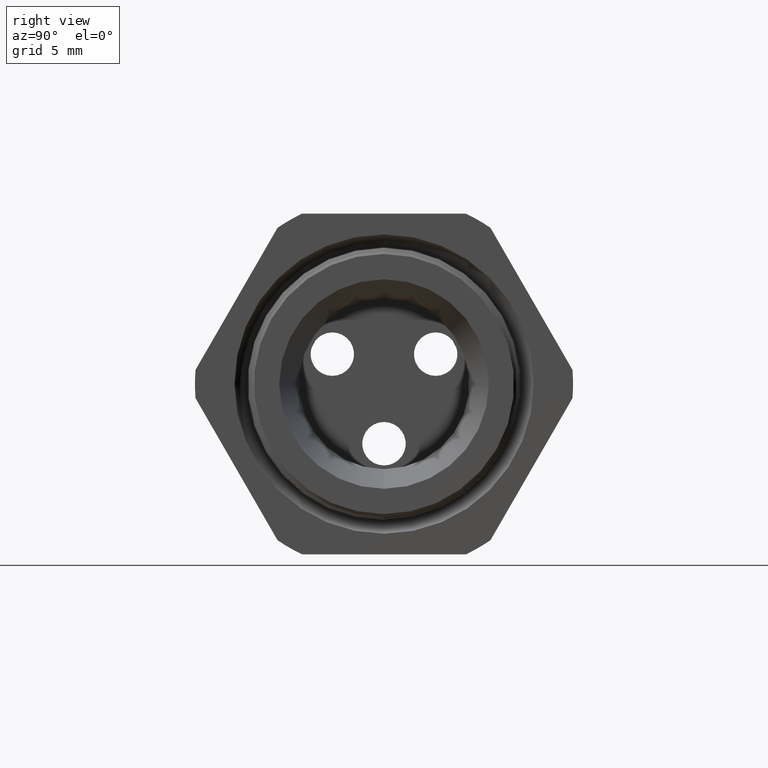
[diagram: clean part render]
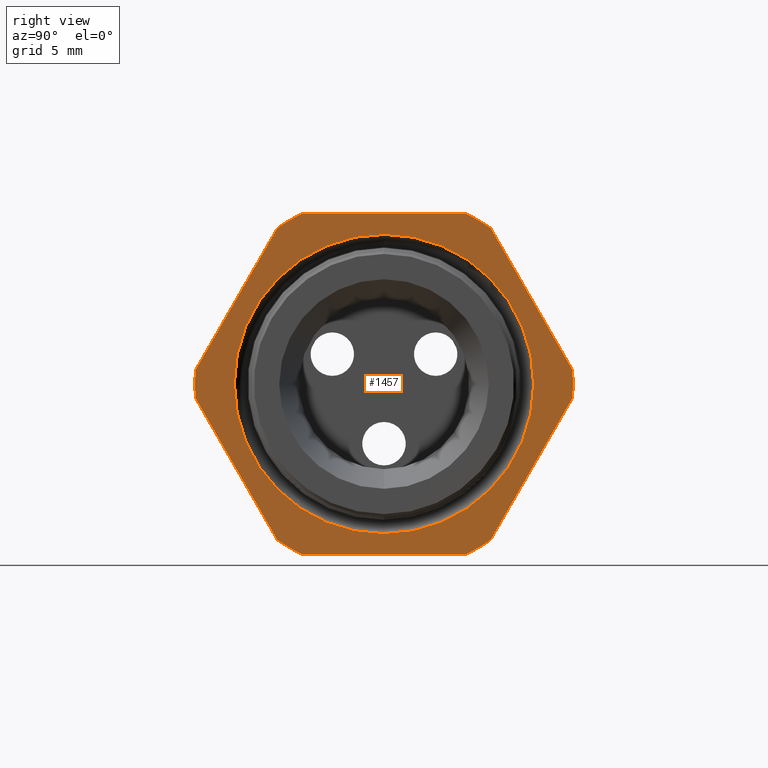
[diagram: same view with one face highlighted and labeled with its STEP entity id]
A machine part, right view. The second image highlights one B-rep face of the part: STEP entity #1457.
In plain terms, the highlighted planar face has unit normal (1, 0, 0).
Its self-contained STEP definition (entity closure, byte-faithful):
#230 = VERTEX_POINT ( 'NONE', #2210 ) ;
#232 = EDGE_CURVE ( 'NONE', #230, #233, #2271, .T. ) ;
#233 = VERTEX_POINT ( 'NONE', #2266 ) ;
#1429 = EDGE_CURVE ( 'NONE', #1511, #1430, #4439, .T. ) ;
#1430 = VERTEX_POINT ( 'NONE', #4435 ) ;
#1431 = ORIENTED_EDGE ( 'NONE', *, *, #1487, .T. ) ;
#1432 = EDGE_CURVE ( 'NONE', #233, #230, #4433, .T. ) ;
#1433 = ORIENTED_EDGE ( 'NONE', *, *, #232, .F. ) ;
#1434 = EDGE_LOOP ( 'NONE', ( #1435, #1439, #1442, #1445, #1503, #1506, #1509, #1512, #1431, #1489, #1492, #1495 ) ) ;
#1435 = ORIENTED_EDGE ( 'NONE', *, *, #1436, .T. ) ;
#1436 = EDGE_CURVE ( 'NONE', #1437, #1438, #4434, .T. ) ;
#1437 = VERTEX_POINT ( 'NONE', #4425 ) ;
#1438 = VERTEX_POINT ( 'NONE', #4424 ) ;
#1439 = ORIENTED_EDGE ( 'NONE', *, *, #1440, .T. ) ;
#1440 = EDGE_CURVE ( 'NONE', #1438, #1441, #4423, .T. ) ;
#1441 = VERTEX_POINT ( 'NONE', #4418 ) ;
#1442 = ORIENTED_EDGE ( 'NONE', *, *, #1443, .T. ) ;
#1443 = EDGE_CURVE ( 'NONE', #1441, #1444, #4417, .T. ) ;
#1444 = VERTEX_POINT ( 'NONE', #4477 ) ;
#1445 = ORIENTED_EDGE ( 'NONE', *, *, #1501, .T. ) ;
#1457 = ADVANCED_FACE ( 'NONE', ( #4456, #4455 ), #4454, .T. ) ;
#1458 = EDGE_LOOP ( 'NONE', ( #1459, #1433 ) ) ;
#1459 = ORIENTED_EDGE ( 'NONE', *, *, #1432, .F. ) ;
#1487 = EDGE_CURVE ( 'NONE', #1430, #1488, #4511, .T. ) ;
#1488 = VERTEX_POINT ( 'NONE', #4507 ) ;
#1489 = ORIENTED_EDGE ( 'NONE', *, *, #1490, .T. ) ;
#1490 = EDGE_CURVE ( 'NONE', #1488, #1491, #4568, .T. ) ;
#1491 = VERTEX_POINT ( 'NONE', #4564 ) ;
#1492 = ORIENTED_EDGE ( 'NONE', *, *, #1493, .T. ) ;
#1493 = EDGE_CURVE ( 'NONE', #1491, #1494, #4563, .T. ) ;
#1494 = VERTEX_POINT ( 'NONE', #4559 ) ;
#1495 = ORIENTED_EDGE ( 'NONE', *, *, #1496, .T. ) ;
#1496 = EDGE_CURVE ( 'NONE', #1494, #1437, #4558, .T. ) ;
#1501 = EDGE_CURVE ( 'NONE', #1444, #1502, #4546, .T. ) ;
#1502 = VERTEX_POINT ( 'NONE', #4542 ) ;
#1503 = ORIENTED_EDGE ( 'NONE', *, *, #1504, .T. ) ;
#1504 = EDGE_CURVE ( 'NONE', #1502, #1505, #4541, .T. ) ;
#1505 = VERTEX_POINT ( 'NONE', #4537 ) ;
#1506 = ORIENTED_EDGE ( 'NONE', *, *, #1507, .T. ) ;
#1507 = EDGE_CURVE ( 'NONE', #1505, #1508, #4601, .T. ) ;
#1508 = VERTEX_POINT ( 'NONE', #4596 ) ;
#1509 = ORIENTED_EDGE ( 'NONE', *, *, #1510, .T. ) ;
#1510 = EDGE_CURVE ( 'NONE', #1508, #1511, #4595, .T. ) ;
#1511 = VERTEX_POINT ( 'NONE', #4591 ) ;
#1512 = ORIENTED_EDGE ( 'NONE', *, *, #1429, .T. ) ;
#2210 = CARTESIAN_POINT ( 'NONE',  ( -0.3100000000000000000, 5.057811065813640600E-017, 0.4130016155952137600 ) ) ;
#2266 = CARTESIAN_POINT ( 'NONE',  ( -0.3100000000000000000, 0.0000000000000000000, -0.4130016155952137600 ) ) ;
#2267 = DIRECTION ( 'NONE',  ( 0.0000000000000000000, 0.0000000000000000000, -1.000000000000000000 ) ) ;
#2268 = DIRECTION ( 'NONE',  ( 1.000000000000000000, 0.0000000000000000000, 0.0000000000000000000 ) ) ;
#2269 = CARTESIAN_POINT ( 'NONE',  ( -0.3100000000000000000, 0.0000000000000000000, 0.0000000000000000000 ) ) ;
#2270 = AXIS2_PLACEMENT_3D ( 'NONE', #2269, #2268, #2267 ) ;
#2271 = CIRCLE ( 'NONE', #2270, 0.4130016155952137600 ) ;
#4414 = DIRECTION ( 'NONE',  ( 0.0000000000000000000, -0.5000000000000001100, 0.8660254037844386000 ) ) ;
#4415 = VECTOR ( 'NONE', #4414, 39.37007874015748100 ) ;
#4416 = CARTESIAN_POINT ( 'NONE',  ( -0.3100000000000000000, 0.6420319397786862200, -0.1720319397786861100 ) ) ;
#4417 = LINE ( 'NONE', #4416, #4415 ) ;
#4418 = CARTESIAN_POINT ( 'NONE',  ( -0.3100000000000000000, 0.5202473208008776600, 0.03890520787129531800 ) ) ;
#4419 = DIRECTION ( 'NONE',  ( 0.0000000000000000000, 0.0000000000000000000, -1.000000000000000000 ) ) ;
#4420 = DIRECTION ( 'NONE',  ( 1.000000000000000000, 0.0000000000000000000, 0.0000000000000000000 ) ) ;
#4421 = CARTESIAN_POINT ( 'NONE',  ( -0.3100000000000000000, 0.0000000000000000000, 0.0000000000000000000 ) ) ;
#4422 = AXIS2_PLACEMENT_3D ( 'NONE', #4421, #4420, #4419 ) ;
#4423 = CIRCLE ( 'NONE', #4422, 0.5217000000000000500 ) ;
#4424 = CARTESIAN_POINT ( 'NONE',  ( -0.3100000000000000000, 0.5202473208008778800, -0.03890520787129497800 ) ) ;
#4425 = CARTESIAN_POINT ( 'NONE',  ( -0.3100000000000000000, 0.2938165587564948700, -0.4310947921287048800 ) ) ;
#4426 = DIRECTION ( 'NONE',  ( 0.0000000000000000000, 0.4999999999999998300, 0.8660254037844388200 ) ) ;
#4427 = VECTOR ( 'NONE', #4426, 39.37007874015748100 ) ;
#4428 = CARTESIAN_POINT ( 'NONE',  ( -0.3100000000000000000, 0.6420319397786862200, 0.1720319397786860500 ) ) ;
#4429 = DIRECTION ( 'NONE',  ( 0.0000000000000000000, 0.0000000000000000000, -1.000000000000000000 ) ) ;
#4430 = DIRECTION ( 'NONE',  ( 1.000000000000000000, 0.0000000000000000000, 0.0000000000000000000 ) ) ;
#4431 = CARTESIAN_POINT ( 'NONE',  ( -0.3100000000000000000, 0.0000000000000000000, 0.0000000000000000000 ) ) ;
#4432 = AXIS2_PLACEMENT_3D ( 'NONE', #4431, #4430, #4429 ) ;
#4433 = CIRCLE ( 'NONE', #4432, 0.4130016155952137600 ) ;
#4434 = LINE ( 'NONE', #4428, #4427 ) ;
#4435 = CARTESIAN_POINT ( 'NONE',  ( -0.3100000000000000000, -0.5202473208008777700, -0.03890520787129495000 ) ) ;
#4436 = DIRECTION ( 'NONE',  ( 0.0000000000000000000, 0.0000000000000000000, -1.000000000000000000 ) ) ;
#4437 = DIRECTION ( 'NONE',  ( 1.000000000000000000, 0.0000000000000000000, 0.0000000000000000000 ) ) ;
#4438 = AXIS2_PLACEMENT_3D ( 'NONE', #4443, #4437, #4436 ) ;
#4439 = CIRCLE ( 'NONE', #4438, 0.5217000000000000500 ) ;
#4443 = CARTESIAN_POINT ( 'NONE',  ( -0.3100000000000000000, 0.0000000000000000000, 0.0000000000000000000 ) ) ;
#4450 = DIRECTION ( 'NONE',  ( 0.0000000000000000000, 0.0000000000000000000, -1.000000000000000000 ) ) ;
#4451 = DIRECTION ( 'NONE',  ( 1.000000000000000000, 0.0000000000000000000, 0.0000000000000000000 ) ) ;
#4452 = CARTESIAN_POINT ( 'NONE',  ( -0.3100000000000000000, 0.9399999999999999500, 0.0000000000000000000 ) ) ;
#4453 = AXIS2_PLACEMENT_3D ( 'NONE', #4452, #4451, #4450 ) ;
#4454 = PLANE ( 'NONE',  #4453 ) ;
#4455 = FACE_OUTER_BOUND ( 'NONE', #1434, .T. ) ;
#4456 = FACE_BOUND ( 'NONE', #1458, .T. ) ;
#4477 = CARTESIAN_POINT ( 'NONE',  ( -0.3100000000000000000, 0.2938165587564947600, 0.4310947921287048800 ) ) ;
#4506 = CARTESIAN_POINT ( 'NONE',  ( -0.3100000000000000000, 0.0000000000000000000, 0.0000000000000000000 ) ) ;
#4507 = CARTESIAN_POINT ( 'NONE',  ( -0.3100000000000000000, -0.2938165587564942600, -0.4310947921287053300 ) ) ;
#4508 = DIRECTION ( 'NONE',  ( 0.0000000000000000000, 0.5000000000000001100, -0.8660254037844386000 ) ) ;
#4509 = VECTOR ( 'NONE', #4508, 39.37007874015748900 ) ;
#4510 = CARTESIAN_POINT ( 'NONE',  ( -0.3100000000000000000, -0.1720319397786862800, -0.6420319397786864400 ) ) ;
#4511 = LINE ( 'NONE', #4510, #4509 ) ;
#4537 = CARTESIAN_POINT ( 'NONE',  ( -0.3100000000000000000, -0.2264307620443835300, 0.4699999999999997000 ) ) ;
#4538 = DIRECTION ( 'NONE',  ( 0.0000000000000000000, -1.000000000000000000, 0.0000000000000000000 ) ) ;
#4539 = VECTOR ( 'NONE', #4538, 39.37007874015748100 ) ;
#4540 = CARTESIAN_POINT ( 'NONE',  ( -0.3100000000000000000, 0.9399999999999999500, 0.4699999999999999200 ) ) ;
#4541 = LINE ( 'NONE', #4540, #4539 ) ;
#4542 = CARTESIAN_POINT ( 'NONE',  ( -0.3100000000000000000, 0.2264307620443832800, 0.4699999999999999200 ) ) ;
#4543 = DIRECTION ( 'NONE',  ( 0.0000000000000000000, 0.0000000000000000000, -1.000000000000000000 ) ) ;
#4544 = DIRECTION ( 'NONE',  ( 1.000000000000000000, 0.0000000000000000000, 0.0000000000000000000 ) ) ;
#4545 = AXIS2_PLACEMENT_3D ( 'NONE', #4551, #4544, #4543 ) ;
#4546 = CIRCLE ( 'NONE', #4545, 0.5217000000000000500 ) ;
#4551 = CARTESIAN_POINT ( 'NONE',  ( -0.3100000000000000000, 0.0000000000000000000, 0.0000000000000000000 ) ) ;
#4554 = DIRECTION ( 'NONE',  ( 0.0000000000000000000, 0.0000000000000000000, -1.000000000000000000 ) ) ;
#4555 = DIRECTION ( 'NONE',  ( 1.000000000000000000, 0.0000000000000000000, 0.0000000000000000000 ) ) ;
#4556 = CARTESIAN_POINT ( 'NONE',  ( -0.3100000000000000000, 0.0000000000000000000, 0.0000000000000000000 ) ) ;
#4557 = AXIS2_PLACEMENT_3D ( 'NONE', #4556, #4555, #4554 ) ;
#4558 = CIRCLE ( 'NONE', #4557, 0.5217000000000000500 ) ;
#4559 = CARTESIAN_POINT ( 'NONE',  ( -0.3100000000000000000, 0.2264307620443831200, -0.4700000000000000300 ) ) ;
#4560 = DIRECTION ( 'NONE',  ( 0.0000000000000000000, 1.000000000000000000, 0.0000000000000000000 ) ) ;
#4561 = VECTOR ( 'NONE', #4560, 39.37007874015748100 ) ;
#4562 = CARTESIAN_POINT ( 'NONE',  ( -0.3100000000000000000, 0.9399999999999999500, -0.4700000000000000300 ) ) ;
#4563 = LINE ( 'NONE', #4562, #4561 ) ;
#4564 = CARTESIAN_POINT ( 'NONE',  ( -0.3100000000000000000, -0.2264307620443830900, -0.4700000000000000300 ) ) ;
#4565 = DIRECTION ( 'NONE',  ( 0.0000000000000000000, 0.0000000000000000000, -1.000000000000000000 ) ) ;
#4566 = DIRECTION ( 'NONE',  ( 1.000000000000000000, 0.0000000000000000000, 0.0000000000000000000 ) ) ;
#4567 = AXIS2_PLACEMENT_3D ( 'NONE', #4506, #4566, #4565 ) ;
#4568 = CIRCLE ( 'NONE', #4567, 0.5217000000000000500 ) ;
#4591 = CARTESIAN_POINT ( 'NONE',  ( -0.3100000000000000000, -0.5202473208008777700, 0.03890520787129464500 ) ) ;
#4592 = DIRECTION ( 'NONE',  ( 0.0000000000000000000, -0.4999999999999998300, -0.8660254037844388200 ) ) ;
#4593 = VECTOR ( 'NONE', #4592, 39.37007874015748100 ) ;
#4594 = CARTESIAN_POINT ( 'NONE',  ( -0.3100000000000000000, -0.1720319397786862800, 0.6420319397786858900 ) ) ;
#4595 = LINE ( 'NONE', #4594, #4593 ) ;
#4596 = CARTESIAN_POINT ( 'NONE',  ( -0.3100000000000000000, -0.2938165587564945900, 0.4310947921287050500 ) ) ;
#4597 = DIRECTION ( 'NONE',  ( 0.0000000000000000000, 0.0000000000000000000, -1.000000000000000000 ) ) ;
#4598 = DIRECTION ( 'NONE',  ( 1.000000000000000000, 0.0000000000000000000, 0.0000000000000000000 ) ) ;
#4599 = CARTESIAN_POINT ( 'NONE',  ( -0.3100000000000000000, 0.0000000000000000000, 0.0000000000000000000 ) ) ;
#4600 = AXIS2_PLACEMENT_3D ( 'NONE', #4599, #4598, #4597 ) ;
#4601 = CIRCLE ( 'NONE', #4600, 0.5217000000000000500 ) ;